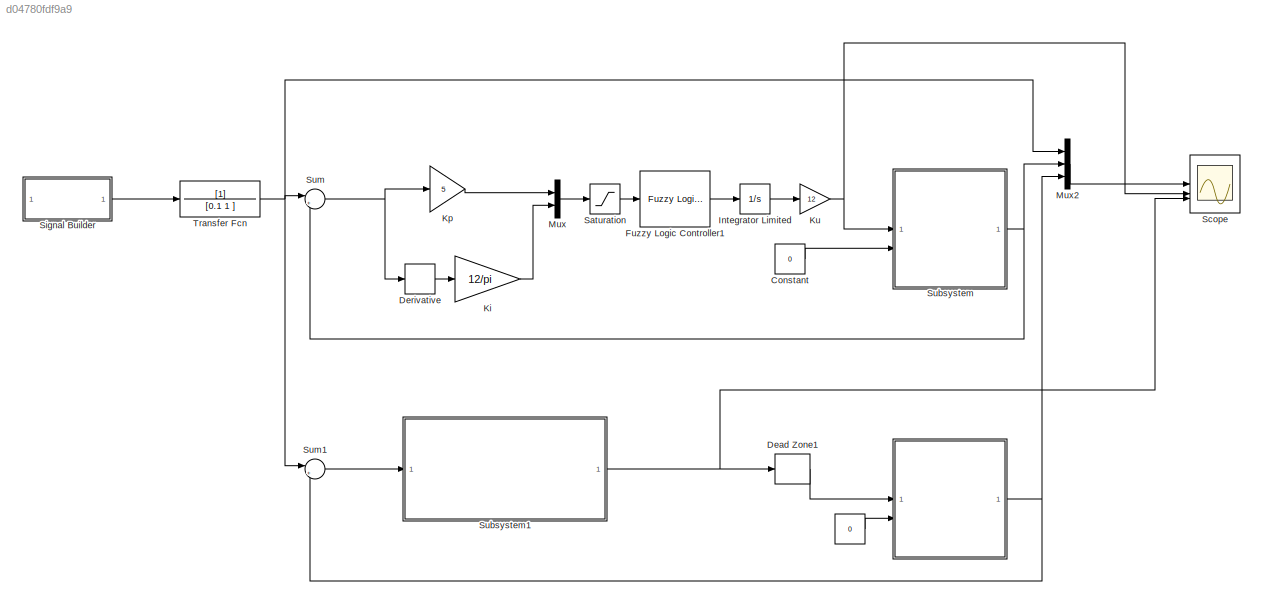
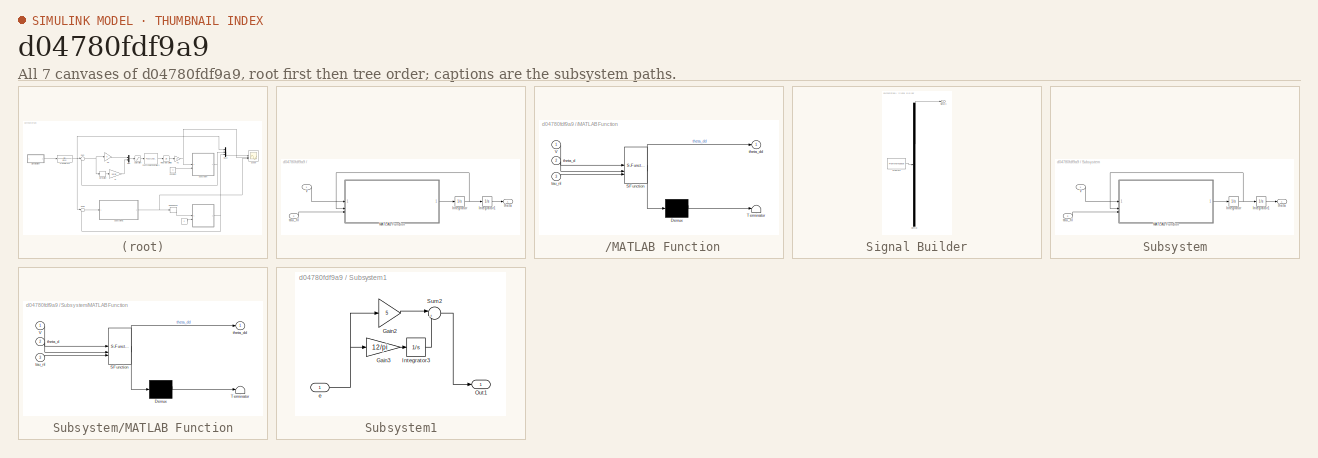
[diagram: thumbnail index - all 7 canvases of the model, root first then tree order]
MODEL slx_d04780fdf9a9
KIND model
CONFIG AbsTol = auto
CONFIG EnableMultiTasking = on
CONFIG FixedStep = 0.01 
CONFIG MaxStep = auto
CONFIG MinStep = auto
CONFIG RelTol = 1e-3
CONFIG SampleTimeConstraint = Unconstrained
CONFIG SolverName = ode5
CONFIG StartTime = 0.0
CONFIG StopTime = 60
BLOCK [SubSystem]  
BLOCK [Constant]   
  Value = 0
BLOCK [Integrator]  /Integrator
BLOCK [Integrator]  /Integrator1
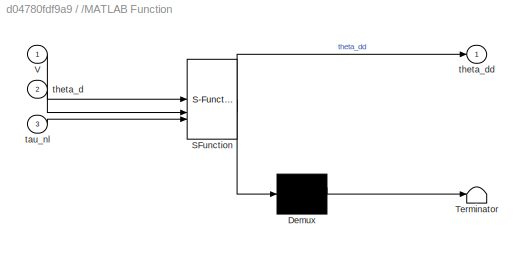
BLOCK [SubSystem]  /MATLAB Function
  ErrorFcn = Stateflow.Translate.translate
  PermitHierarchicalResolution = ExplicitOnly
  SFBlockType = MATLAB Function
  TreatAsAtomicUnit = on
BLOCK [Demux]  /MATLAB Function/ Demux 
  Outputs = 1
BLOCK [S-Function]  /MATLAB Function/ SFunction 
  EnableBusSupport = on
  FunctionName = sf_sfun
  PortCounts = [3 2]
  SFcnIsStateOwnerBlock = off
  SFunctionDeploymentMode = off
  Tag = Stateflow S-Function 1
BLOCK [Terminator]  /MATLAB Function/ Terminator 
BLOCK [Inport]  /MATLAB Function/V
BLOCK [Inport]  /MATLAB Function/tau_nl
  Port = 3
BLOCK [Inport]  /MATLAB Function/theta_d
  Port = 2
BLOCK [Outport]  /MATLAB Function/theta_dd
BLOCK [Inport]  /V
BLOCK [Inport]  /tau_nl
  Port = 2
BLOCK [Outport]  /theta
BLOCK [Constant] Constant
  Value = 0
BLOCK [DeadZone] Dead Zone1
  LowerValue = -0.05
  UpperValue = 0.05
BLOCK [Derivative] Derivative
BLOCK [Reference] Fuzzy Logic Controller1  REF=fuzblock/Fuzzy Logic   (lib defined in mdl_858b3b3e7478)
Controller
  SourceBlock = fuzblock/Fuzzy Logic \nController
  SourceType = Fuzzy Inference System
BLOCK [Integrator] Integrator Limited
  LimitOutput = on
  LowerSaturationLimit = -1
  UpperSaturationLimit = 1
BLOCK [Gain] Ki
  Gain = 12/pi
BLOCK [Gain] Kp 
  Gain = 5
BLOCK [Gain] Ku 
  Gain = 12
BLOCK [Mux] Mux
  DisplayOption = bar
  Inputs = 2
BLOCK [Mux] Mux2
  DisplayOption = bar
  Inputs = 3
BLOCK [Saturate] Saturation
  LowerLimit = -1
  UpperLimit = 1
BLOCK [Scope] Scope
  Floating = off
  NumInputPorts = 3
  ScopeSpecificationString = Simulink.scopes.TimeScopeBlockCfg('CurrentConfiguration', extmgr.ConfigurationSet(extmgr.Configuration('Core','General UI',true,'FigureColor',[1 1 1]),extmgr.Configuration('Core','Source UI',true),extmgr.Configuration('Sources','WiredSimulink',true),extmgr.Configuration('Visuals','Time Domain',true,'SerializedDisplays',{struct('MinYLimReal','-2.94003','MaxYLimReal','6.18123','YLabelReal','','MinYL...<+3393ch>
BLOCK [SubSystem] Signal Builder
  ClipboardFcn = sigbuilder_block('clipboard');
  CloseFcn = sigbuilder_block('close');
  ContinueFcn = sigbuilder_block('continue');
  CopyFcn = sigbuilder_block('copy');
  DeleteFcn = sigbuilder_block('delete');
  LoadFcn = sigbuilder_block('load');
  MaskHideContents = on
  ModelCloseFcn = sigbuilder_block('modelClose');
  NameChangeFcn = sigbuilder_block('namechange');
  OpenFcn = sigbuilder_block('open',[5.5 5.5 949 474.5 ]);
  PauseFcn = sigbuilder_block('pause');
  PreSaveFcn = sigbuilder_block('preSave');
  StartFcn = sigbuilder_block('start');
  StopFcn = sigbuilder_block('stop');
  Tag = STV Subsys
BLOCK [Demux] Signal Builder/Demux
  DisplayOption = none
  Outputs = 1
  Tag = STV Demux
BLOCK [FromWorkspace] Signal Builder/FromWs
  Tag = STV FromWs
  VariableName = tuvar
BLOCK [Outport] Signal Builder/Signal 3
  Tag = STV Outport
BLOCK [SubSystem] Subsystem
BLOCK [Integrator] Subsystem/Integrator
BLOCK [Integrator] Subsystem/Integrator1
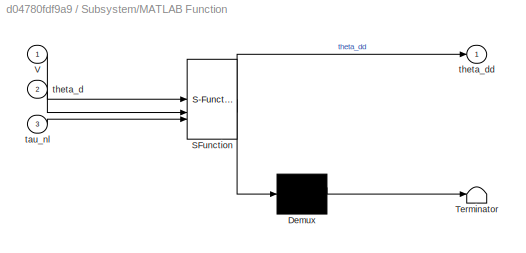
BLOCK [SubSystem] Subsystem/MATLAB Function
  ErrorFcn = Stateflow.Translate.translate
  PermitHierarchicalResolution = ExplicitOnly
  SFBlockType = MATLAB Function
  TreatAsAtomicUnit = on
BLOCK [Demux] Subsystem/MATLAB Function/ Demux 
  Outputs = 1
BLOCK [S-Function] Subsystem/MATLAB Function/ SFunction 
  EnableBusSupport = on
  FunctionName = sf_sfun
  PortCounts = [3 2]
  SFcnIsStateOwnerBlock = off
  SFunctionDeploymentMode = off
  Tag = Stateflow S-Function 2
BLOCK [Terminator] Subsystem/MATLAB Function/ Terminator 
BLOCK [Inport] Subsystem/MATLAB Function/V
BLOCK [Inport] Subsystem/MATLAB Function/tau_nl
  Port = 3
BLOCK [Inport] Subsystem/MATLAB Function/theta_d
  Port = 2
BLOCK [Outport] Subsystem/MATLAB Function/theta_dd
BLOCK [Inport] Subsystem/V
BLOCK [Inport] Subsystem/tau_nl
  Port = 2
BLOCK [Outport] Subsystem/theta
BLOCK [SubSystem] Subsystem1
BLOCK [Gain] Subsystem1/Gain2
  Gain = 5
BLOCK [Gain] Subsystem1/Gain3
  Gain = 12/pi
BLOCK [Integrator] Subsystem1/Integrator3
BLOCK [Outport] Subsystem1/Out1
BLOCK [Sum] Subsystem1/Sum2
  Inputs = |++
BLOCK [Inport] Subsystem1/e
BLOCK [Sum] Sum
  Inputs = |+-
BLOCK [Sum] Sum1
  Inputs = |+-
BLOCK [TransferFcn] Transfer Fcn
  Denominator = [0.1  1 ]
LINE   :1 ->  :2
LINE  /Integrator1:1 ->  /theta:1
NET  /Integrator:1 ->  /Integrator1:1,  /MATLAB Function:2
LINE  /MATLAB Function:1 ->  /Integrator:1
LINE  /V:1 ->  /MATLAB Function:1
LINE  /tau_nl:1 ->  /MATLAB Function:3
NET  :1 -> Mux2:3, Sum1:2
LINE Constant:1 -> Subsystem:2
LINE Dead Zone1:1 ->  :1
LINE Derivative:1 -> Ki:1
LINE Fuzzy Logic Controller1:1 -> Integrator Limited:1
LINE Integrator Limited:1 -> Ku :1
LINE Ki:1 -> Mux:2
LINE Kp :1 -> Mux:1
NET Ku :1 -> Scope:2, Subsystem:1
LINE Mux2:1 -> Scope:1
LINE Mux:1 -> Saturation:1
LINE Saturation:1 -> Fuzzy Logic Controller1:1
LINE Signal Builder:1 -> Transfer Fcn:1
LINE Subsystem/Integrator1:1 -> Subsystem/theta:1
NET Subsystem/Integrator:1 -> Subsystem/Integrator1:1, Subsystem/MATLAB Function:2
LINE Subsystem/MATLAB Function:1 -> Subsystem/Integrator:1
LINE Subsystem/V:1 -> Subsystem/MATLAB Function:1
LINE Subsystem/tau_nl:1 -> Subsystem/MATLAB Function:3
LINE Subsystem1/Gain2:1 -> Subsystem1/Sum2:1
LINE Subsystem1/Gain3:1 -> Subsystem1/Integrator3:1
LINE Subsystem1/Integrator3:1 -> Subsystem1/Sum2:2
LINE Subsystem1/Sum2:1 -> Subsystem1/Out1:1
NET Subsystem1/e:1 -> Subsystem1/Gain2:1, Subsystem1/Gain3:1
NET Subsystem1:1 -> Dead Zone1:1, Scope:3
NET Subsystem:1 -> Mux2:2, Sum:2
LINE Sum1:1 -> Subsystem1:1
NET Sum:1 -> Derivative:1, Kp :1
NET Transfer Fcn:1 -> Mux2:1, Sum1:1, Sum:1
note: NET lines group one-source signal fan-out (src -> all destinations, sorted); 1:1 wires keep LINE
CHART  /MATLAB Function states=1 transitions=1
  STATE_LABEL 'eML_blk_kernel()'
  STATE_LABEL 'SCRIPT:\nfunction theta_dd = motor_acceleration(V, theta_d, tau_nl)\n    % Các thông số\n    K = 0.2082   ;     % Hằng số mô-men (Nm/V)\n    J = 0.001    ;   % Moment quán tính (kg.m^2)\n    v = 0.0204  ;   % Hệ số ma sát nhớt (N.m.s)\n    % Phương trình tính gia tốc góc\n    theta_dd = (K*V - v*theta_d - tau_nl) / J;\nend\n\n\n\n\n\n\n\n'
CHART Subsystem/MATLAB Function states=1 transitions=1
  STATE_LABEL 'eML_blk_kernel()'
  STATE_LABEL 'SCRIPT:\nfunction theta_dd = motor_acceleration(V, theta_d, tau_nl)\n    % Các thông số\n    K = 0.2082   ;     % Hằng số mô-men (Nm/V)\n    J = 0.001 ;   % Moment quán tính (kg.m^2)\n    v = 0.0204  ;   % Hệ số ma sát nhớt (N.m.s)\n    % Phương trình tính gia tốc góc\n    theta_dd = (K*V - v*theta_d - tau_nl) / J;\nend\n\n\n\n\n\n\n'
CHART  states=0 transitions=0
CHART  states=0 transitions=0
